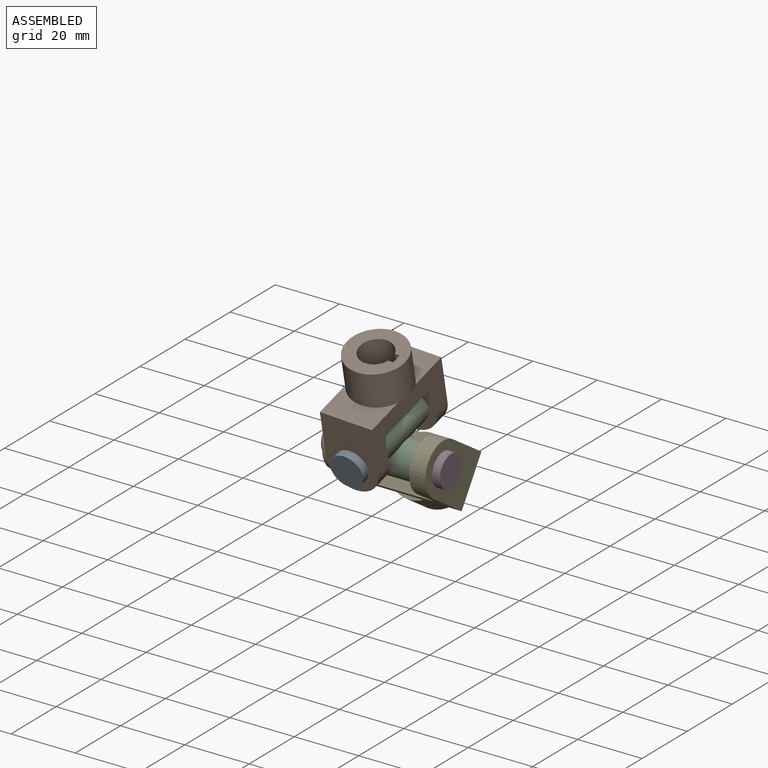
[diagram: assembled view]
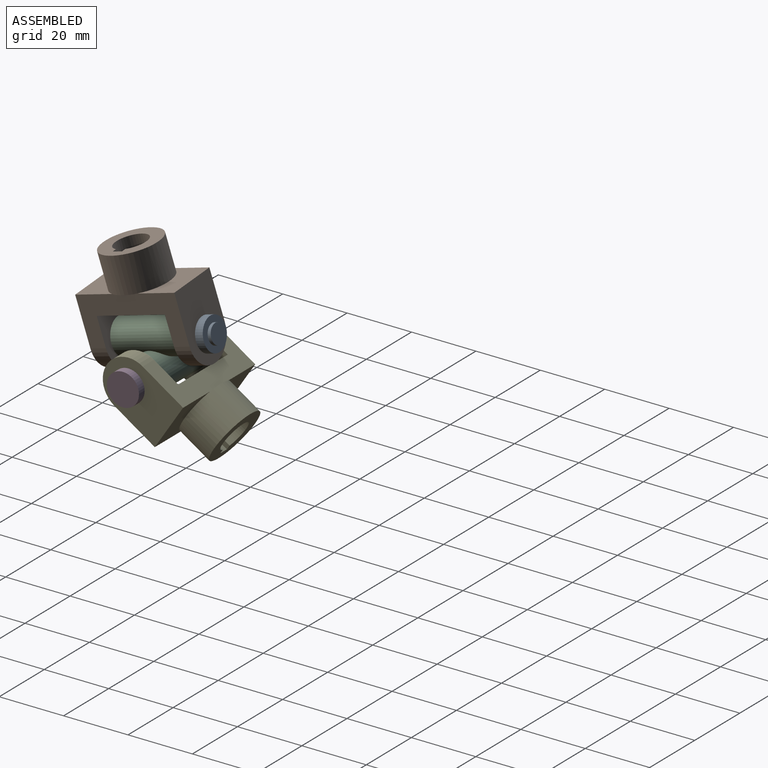
[diagram: assembled view, second angle]
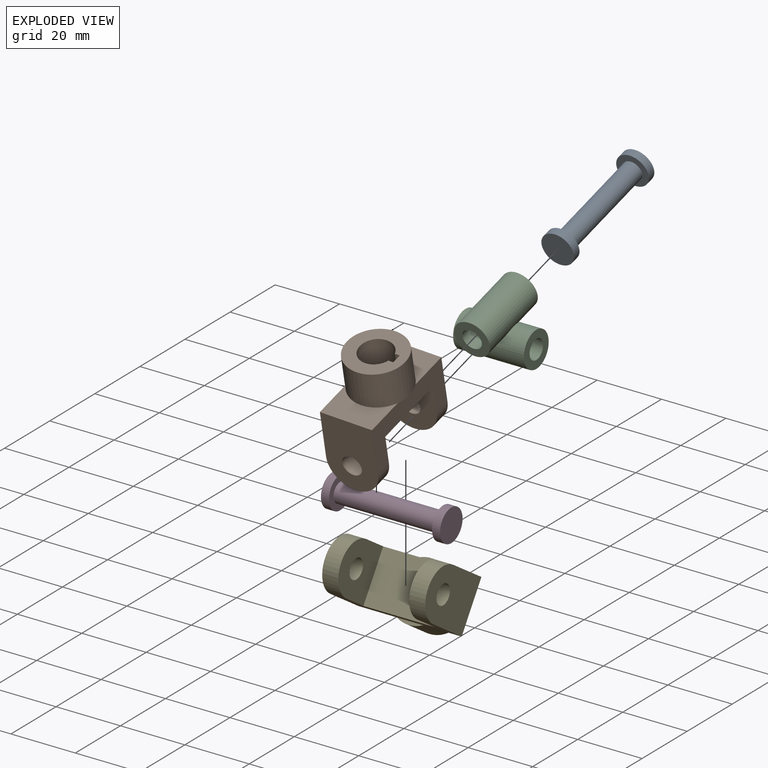
[diagram: exploded view]
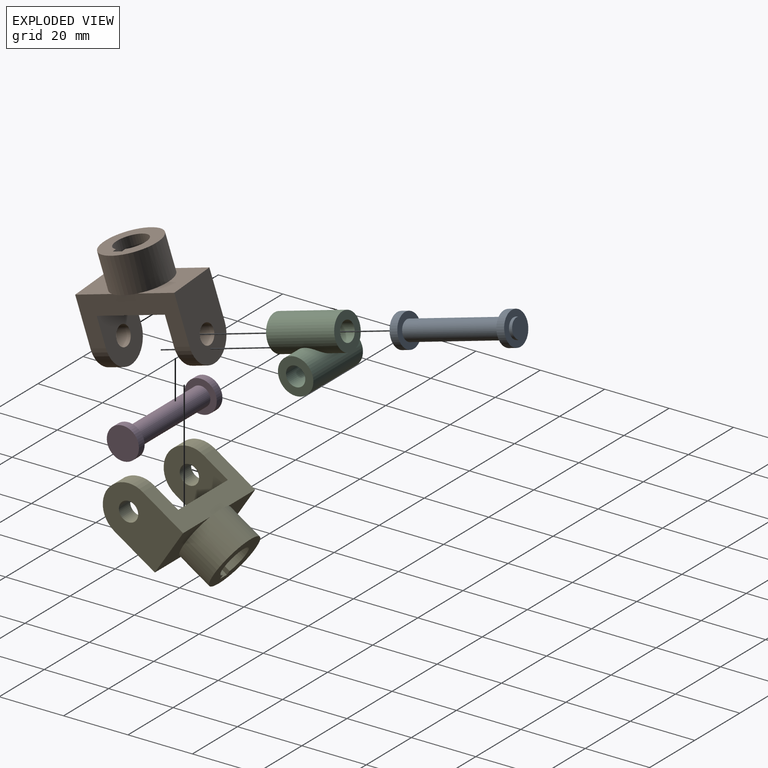
[diagram: exploded view, second angle]
ASSEMBLY  parts=5 mates=4
PART A: 9 faces, bbox 10x10x38 mm
  f0: plane 6x6mm, normal (0,0,1), area 28.3mm2, adj f1
  f1: cylinder r=3mm len=6mm, axis (0,0,1), area 18.8mm2, adj f0,f2
  f2: plane 10x10mm, normal (0,0,1), area 50.3mm2, adj f1,f3
  f3: cylinder r=5mm len=10mm, axis (0,0,1), area 78.5mm2, adj f2,f4
  f4: plane 10x10mm, normal (0,0,-1), area 50.3mm2, adj f3,f5
  f5: cylinder r=3mm len=32mm, axis (0,0,1), area 603.2mm2, adj f4,f6
  f6: plane 10x10mm, normal (0,0,1), area 50.3mm2, adj f5,f7
  f7: cylinder r=5mm len=10mm, axis (0,0,1), area 78.5mm2, adj f6,f8
  f8: plane 10x10mm, normal (0,0,-1), area 78.5mm2, adj f7
PART B: 22 faces, bbox 32x18x34 mm
  f0: plane 23x16mm, normal (-1,0,0), area 312.3mm2, adj f8,f11,f12,f18,f19
  f1: plane 17x16mm, normal (-1,0,0), area 216.3mm2, adj f10,f11,f12,f20,f21
  f2: plane 17x16mm, normal (1,0,0), area 216.3mm2, adj f10,f11,f12,f18,f19
  f3: plane 23x16mm, normal (1,0,0), area 312.3mm2, adj f9,f11,f12,f20,f21
  f4: plane 18x18mm, normal (0,0,-1), area 171.9mm2, adj f6,f13,f14,f15,f16
  f5: plane 8.25x1mm, normal (0,0,1), area 5.6mm2, adj f6,f11
  f6: cylinder r=9mm len=18mm, axis (0,0,1), area 622mm2, adj f4,f5,f7,f8,f9
  f7: plane 8.25x1mm, normal (0,0,1), area 5.6mm2, adj f6,f12
  f8: plane 16x11.88mm, normal (0,0,-1), area 134.3mm2, adj f0,f6,f11,f12
  f9: plane 16x11.88mm, normal (0,0,-1), area 134.3mm2, adj f3,f6,f11,f12
  f10: plane 22x16mm, normal (0,0,1), area 352mm2, adj f1,f2,f11,f12
  f11: plane 32x15mm, normal (0,-1,0), area 282mm2, adj f0,f1,f2,f3,f5,f8,f9,f10
  f12: plane 32x15mm, normal (0,1,0), area 282mm2, adj f0,f1,f2,f3,f7,f8,f9,f10
  f13: plane 11x1.5mm, normal (-1,0,0), area 16.5mm2, adj f4,f14,f16,f17
  f14: plane 11x3mm, normal (0,1,0), area 33mm2, adj f4,f13,f15,f17
  f15: plane 11x1.5mm, normal (1,0,0), area 16.5mm2, adj f4,f14,f16,f17
  f16: cylinder r=5mm len=11mm, axis (0,0,-1), area 312.1mm2, adj f4,f13,f15,f17
  f17: plane 11.27x10mm, normal (0,0,-1), area 82.6mm2, adj f13,f14,f15,f16
  f18: cylinder r=3mm len=6mm, axis (1,0,0), area 94.2mm2, adj f0,f2
  f19: cylinder r=8mm len=16mm, axis (1,0,0), area 125.7mm2, adj f0,f2,f11,f12
  f20: cylinder r=3mm len=6mm, axis (1,0,0), area 94.2mm2, adj f1,f3
  f21: cylinder r=8mm len=16mm, axis (1,0,0), area 125.7mm2, adj f1,f3,f11,f12
PART C: 8 faces, bbox 19x22x22 mm
  f0: cylinder r=5.5mm len=22mm, axis (0,1,0), area 664.2mm2, adj f1,f2,f3
  f1: plane 11x11mm, normal (0,-1,0), area 66.8mm2, adj f0,f6
  f2: plane 11x11mm, normal (0,1,0), area 66.8mm2, adj f0,f6
  f3: cylinder r=5.5mm len=22mm, axis (0,0,-1), area 664.2mm2, adj f0,f4,f5
  f4: plane 11x11mm, normal (0,0,1), area 66.8mm2, adj f3,f7
  f5: plane 11x11mm, normal (0,0,-1), area 66.8mm2, adj f3,f7
  f6: cylinder r=3mm len=22mm, axis (0,-1,0), area 414.7mm2, adj f1,f2
  f7: cylinder r=3mm len=22mm, axis (0,0,-1), area 414.7mm2, adj f4,f5
PART D: same geometry as A
PART E: same geometry as B
PLACE A rot(axis=(-0.66,0.45,0.6),97.5deg) t=(14.3,9.19,9.5)mm
PLACE B rot(axis=(-0.71,0.7,0.12),171.3deg) t=(15.23,20.48,28.28)mm
PLACE C rot(axis=(-0.7,-0.1,0.7),168.8deg) t=(14.3,9.19,9.5)mm
PLACE D rot(axis=(0.71,-0.02,-0.71),178deg) t=(14.3,11.38,1.81)mm
PLACE E rot(axis=(1,0,0),56.7deg) t=(-1.7,23.92,-6.42)mm fixed
MATE revolute A.f1 <-> B.f18  axis (0,-0.96,-0.27) through (14.3,24.58,13.88)mm
MATE revolute B.f18 <-> C.f0  axis (0,-0.96,-0.27) through (14.3,19.77,12.51)mm
MATE revolute D.f1 <-> E.f18  axis (-1,0,0) through (30.3,11.38,1.81)mm
MATE revolute C.f3 <-> E.f18  axis (-1,0,0) through (3.3,11.38,1.81)mm
